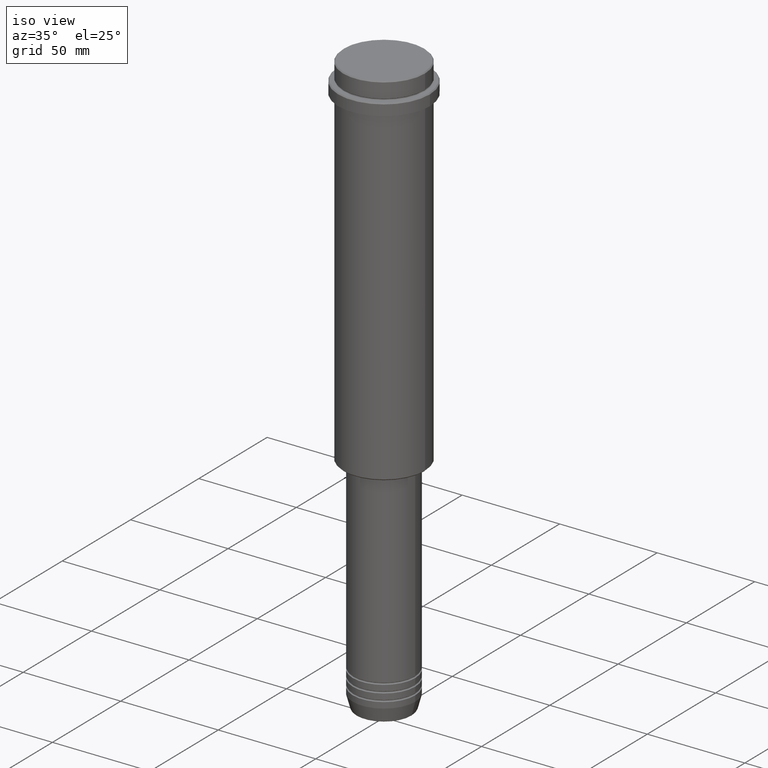
[diagram: clean part render]
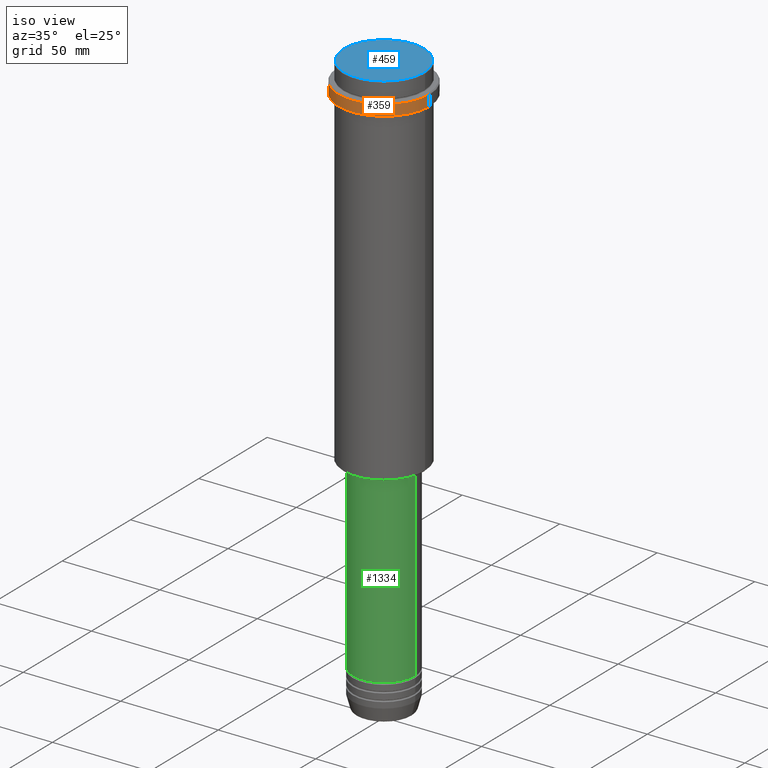
[diagram: same view with three faces highlighted in distinct colors, each labeled with its STEP entity id]
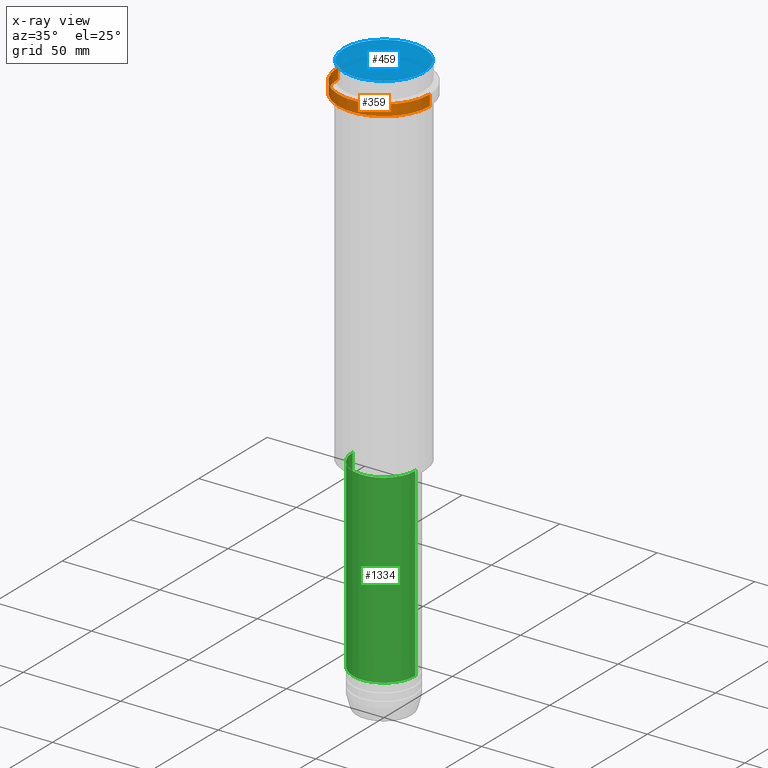
[diagram: x-ray of the same camera — body ghosted, the three highlighted faces saturated]
A machine part, iso view with three faces highlighted in distinct colors.
The next image is the same camera in x-ray (body ghosted, the three faces saturated) — at least one of them is partly hidden behind the body in this view.
Their STEP definitions:

[orange] entity #359 — the highlighted cylindrical surface (partial cylindrical patch) has radius 23.5 mm, axis along (-0, -0, 1).
#68 = DIRECTION ( 'NONE',  ( -0.000000000000000000, -0.000000000000000000, 1.000000000000000000 ) ) ;
#73 = EDGE_CURVE ( 'NONE', #976, #1347, #287, .T. ) ;
#88 = AXIS2_PLACEMENT_3D ( 'NONE', #291, #415, #928 ) ;
#139 = VERTEX_POINT ( 'NONE', #1142 ) ;
#181 = CARTESIAN_POINT ( 'NONE',  ( -23.50000000000000000, 2.877919977996280320E-15, 0.000000000000000000 ) ) ;
#287 = LINE ( 'NONE', #1039, #289 ) ;
#289 = VECTOR ( 'NONE', #68, 1000.000000000000000 ) ;
#291 = CARTESIAN_POINT ( 'NONE',  ( 0.000000000000000000, 0.000000000000000000, -15.00000000000000178 ) ) ;
#306 = EDGE_CURVE ( 'NONE', #1347, #139, #689, .T. ) ;
#333 = AXIS2_PLACEMENT_3D ( 'NONE', #839, #662, #1177 ) ;
#359 = ADVANCED_FACE ( 'NONE', ( #1088 ), #448, .T. ) ;
#370 = CARTESIAN_POINT ( 'NONE',  ( -23.50000000000000711, 2.877919977996281109E-15, -15.00000000000000178 ) ) ;
#415 = DIRECTION ( 'NONE',  ( -0.000000000000000000, -0.000000000000000000, 1.000000000000000000 ) ) ;
#422 = ORIENTED_EDGE ( 'NONE', *, *, #986, .F. ) ;
#447 = VECTOR ( 'NONE', #495, 1000.000000000000000 ) ;
#448 = CYLINDRICAL_SURFACE ( 'NONE', #1253, 23.50000000000000000 ) ;
#487 = EDGE_LOOP ( 'NONE', ( #422, #832, #1198, #1216 ) ) ;
#495 = DIRECTION ( 'NONE',  ( -0.000000000000000000, -0.000000000000000000, 1.000000000000000000 ) ) ;
#662 = DIRECTION ( 'NONE',  ( 0.000000000000000000, 0.000000000000000000, -1.000000000000000000 ) ) ;
#681 = CARTESIAN_POINT ( 'NONE',  ( 23.50000000000000000, 0.000000000000000000, -9.499999999999946709 ) ) ;
#684 = CARTESIAN_POINT ( 'NONE',  ( 0.000000000000000000, 0.000000000000000000, 0.000000000000000000 ) ) ;
#689 = CIRCLE ( 'NONE', #333, 23.50000000000000000 ) ;
#821 = VERTEX_POINT ( 'NONE', #370 ) ;
#832 = ORIENTED_EDGE ( 'NONE', *, *, #922, .T. ) ;
#839 = CARTESIAN_POINT ( 'NONE',  ( 0.000000000000000000, 0.000000000000000000, -9.499999999999946709 ) ) ;
#879 = DIRECTION ( 'NONE',  ( -0.000000000000000000, -0.000000000000000000, 1.000000000000000000 ) ) ;
#922 = EDGE_CURVE ( 'NONE', #821, #976, #984, .T. ) ;
#928 = DIRECTION ( 'NONE',  ( 1.000000000000000000, 0.000000000000000000, 0.000000000000000000 ) ) ;
#976 = VERTEX_POINT ( 'NONE', #1375 ) ;
#978 = DIRECTION ( 'NONE',  ( 1.000000000000000000, 0.000000000000000000, 0.000000000000000000 ) ) ;
#984 = CIRCLE ( 'NONE', #88, 23.50000000000000355 ) ;
#986 = EDGE_CURVE ( 'NONE', #821, #139, #1169, .T. ) ;
#1039 = CARTESIAN_POINT ( 'NONE',  ( 23.50000000000000000, 0.000000000000000000, 0.000000000000000000 ) ) ;
#1088 = FACE_OUTER_BOUND ( 'NONE', #487, .T. ) ;
#1142 = CARTESIAN_POINT ( 'NONE',  ( -23.50000000000000000, 2.877919977996280320E-15, -9.499999999999946709 ) ) ;
#1169 = LINE ( 'NONE', #181, #447 ) ;
#1177 = DIRECTION ( 'NONE',  ( 1.000000000000000000, 0.000000000000000000, 0.000000000000000000 ) ) ;
#1198 = ORIENTED_EDGE ( 'NONE', *, *, #73, .T. ) ;
#1216 = ORIENTED_EDGE ( 'NONE', *, *, #306, .T. ) ;
#1253 = AXIS2_PLACEMENT_3D ( 'NONE', #684, #879, #978 ) ;
#1347 = VERTEX_POINT ( 'NONE', #681 ) ;
#1375 = CARTESIAN_POINT ( 'NONE',  ( 23.50000000000000355, 0.000000000000000000, -15.00000000000000178 ) ) ;

[blue] entity #459 — the highlighted planar face has unit normal (0, -0, 1).
#76 = DIRECTION ( 'NONE',  ( 1.000000000000000000, 0.000000000000000000, 0.000000000000000000 ) ) ;
#142 = DIRECTION ( 'NONE',  ( -0.000000000000000000, -0.000000000000000000, 1.000000000000000000 ) ) ;
#226 = AXIS2_PLACEMENT_3D ( 'NONE', #828, #717, #76 ) ;
#254 = DIRECTION ( 'NONE',  ( 1.000000000000000000, 0.000000000000000000, 0.000000000000000000 ) ) ;
#347 = FACE_OUTER_BOUND ( 'NONE', #1135, .T. ) ;
#361 = ORIENTED_EDGE ( 'NONE', *, *, #1342, .T. ) ;
#428 = CARTESIAN_POINT ( 'NONE',  ( -20.50000000000001776, 0.000000000000000000, 0.000000000000000000 ) ) ;
#459 = ADVANCED_FACE ( 'NONE', ( #347 ), #1325, .T. ) ;
#563 = DIRECTION ( 'NONE',  ( 0.000000000000000000, -0.000000000000000000, 1.000000000000000000 ) ) ;
#591 = CARTESIAN_POINT ( 'NONE',  ( 20.50000000000001776, 2.541142108230758663E-15, 0.000000000000000000 ) ) ;
#593 = CARTESIAN_POINT ( 'NONE',  ( 0.000000000000000000, 0.000000000000000000, 0.000000000000000000 ) ) ;
#601 = VERTEX_POINT ( 'NONE', #591 ) ;
#675 = CARTESIAN_POINT ( 'NONE',  ( 0.000000000000000000, 0.000000000000000000, 0.000000000000000000 ) ) ;
#717 = DIRECTION ( 'NONE',  ( -0.000000000000000000, -0.000000000000000000, 1.000000000000000000 ) ) ;
#785 = AXIS2_PLACEMENT_3D ( 'NONE', #675, #563, #989 ) ;
#790 = CIRCLE ( 'NONE', #226, 20.50000000000001776 ) ;
#828 = CARTESIAN_POINT ( 'NONE',  ( 0.000000000000000000, 0.000000000000000000, 0.000000000000000000 ) ) ;
#989 = DIRECTION ( 'NONE',  ( 1.000000000000000000, 0.000000000000000000, 0.000000000000000000 ) ) ;
#1027 = CIRCLE ( 'NONE', #1332, 20.50000000000001776 ) ;
#1033 = ORIENTED_EDGE ( 'NONE', *, *, #1396, .T. ) ;
#1135 = EDGE_LOOP ( 'NONE', ( #1033, #361 ) ) ;
#1192 = VERTEX_POINT ( 'NONE', #428 ) ;
#1325 = PLANE ( 'NONE',  #785 ) ;
#1332 = AXIS2_PLACEMENT_3D ( 'NONE', #593, #142, #254 ) ;
#1342 = EDGE_CURVE ( 'NONE', #601, #1192, #1027, .T. ) ;
#1396 = EDGE_CURVE ( 'NONE', #1192, #601, #790, .T. ) ;

[green] entity #1334 — the highlighted cylindrical surface (partial cylindrical patch) has radius 16 mm, axis along (-0, -0, 1).
#5 = LINE ( 'NONE', #244, #245 ) ;
#21 = DIRECTION ( 'NONE',  ( -0.000000000000000000, -0.000000000000000000, 1.000000000000000000 ) ) ;
#33 = VECTOR ( 'NONE', #1153, 1000.000000000000000 ) ;
#41 = CARTESIAN_POINT ( 'NONE',  ( 16.00000000000000000, 0.000000000000000000, -280.9999999999998863 ) ) ;
#99 = CARTESIAN_POINT ( 'NONE',  ( -16.00000000000000355, 1.959434878635765526E-15, -185.9999999999999147 ) ) ;
#102 = ORIENTED_EDGE ( 'NONE', *, *, #285, .T. ) ;
#121 = VERTEX_POINT ( 'NONE', #279 ) ;
#145 = CIRCLE ( 'NONE', #405, 16.00000000000000355 ) ;
#150 = ORIENTED_EDGE ( 'NONE', *, *, #682, .F. ) ;
#232 = DIRECTION ( 'NONE',  ( 1.000000000000000000, 0.000000000000000000, 0.000000000000000000 ) ) ;
#244 = CARTESIAN_POINT ( 'NONE',  ( 16.00000000000000000, 0.000000000000000000, 0.000000000000000000 ) ) ;
#245 = VECTOR ( 'NONE', #454, 1000.000000000000000 ) ;
#249 = CARTESIAN_POINT ( 'NONE',  ( 16.00000000000000355, 0.000000000000000000, -185.9999999999999147 ) ) ;
#252 = ORIENTED_EDGE ( 'NONE', *, *, #1017, .F. ) ;
#279 = CARTESIAN_POINT ( 'NONE',  ( -16.00000000000000000, 1.959434878635765131E-15, -280.9999999999998863 ) ) ;
#285 = EDGE_CURVE ( 'NONE', #121, #914, #1280, .T. ) ;
#320 = DIRECTION ( 'NONE',  ( 1.000000000000000000, 0.000000000000000000, 0.000000000000000000 ) ) ;
#349 = EDGE_CURVE ( 'NONE', #914, #1349, #5, .T. ) ;
#362 = FACE_OUTER_BOUND ( 'NONE', #776, .T. ) ;
#405 = AXIS2_PLACEMENT_3D ( 'NONE', #1063, #633, #320 ) ;
#454 = DIRECTION ( 'NONE',  ( -0.000000000000000000, -0.000000000000000000, 1.000000000000000000 ) ) ;
#629 = CARTESIAN_POINT ( 'NONE',  ( -16.00000000000000000, 1.959434878635765131E-15, 0.000000000000000000 ) ) ;
#633 = DIRECTION ( 'NONE',  ( -0.000000000000000000, -0.000000000000000000, 1.000000000000000000 ) ) ;
#682 = EDGE_CURVE ( 'NONE', #705, #1349, #145, .T. ) ;
#705 = VERTEX_POINT ( 'NONE', #99 ) ;
#751 = DIRECTION ( 'NONE',  ( -0.000000000000000000, -0.000000000000000000, 1.000000000000000000 ) ) ;
#776 = EDGE_LOOP ( 'NONE', ( #252, #102, #948, #150 ) ) ;
#862 = CARTESIAN_POINT ( 'NONE',  ( 0.000000000000000000, 0.000000000000000000, -280.9999999999998863 ) ) ;
#902 = CARTESIAN_POINT ( 'NONE',  ( 0.000000000000000000, 0.000000000000000000, 0.000000000000000000 ) ) ;
#914 = VERTEX_POINT ( 'NONE', #41 ) ;
#948 = ORIENTED_EDGE ( 'NONE', *, *, #349, .T. ) ;
#1017 = EDGE_CURVE ( 'NONE', #121, #705, #1266, .T. ) ;
#1063 = CARTESIAN_POINT ( 'NONE',  ( 0.000000000000000000, 0.000000000000000000, -185.9999999999999147 ) ) ;
#1095 = AXIS2_PLACEMENT_3D ( 'NONE', #902, #21, #1234 ) ;
#1128 = CYLINDRICAL_SURFACE ( 'NONE', #1095, 16.00000000000000000 ) ;
#1153 = DIRECTION ( 'NONE',  ( -0.000000000000000000, -0.000000000000000000, 1.000000000000000000 ) ) ;
#1234 = DIRECTION ( 'NONE',  ( 1.000000000000000000, 0.000000000000000000, 0.000000000000000000 ) ) ;
#1266 = LINE ( 'NONE', #629, #33 ) ;
#1280 = CIRCLE ( 'NONE', #1328, 16.00000000000000000 ) ;
#1328 = AXIS2_PLACEMENT_3D ( 'NONE', #862, #751, #232 ) ;
#1334 = ADVANCED_FACE ( 'NONE', ( #362 ), #1128, .T. ) ;
#1349 = VERTEX_POINT ( 'NONE', #249 ) ;